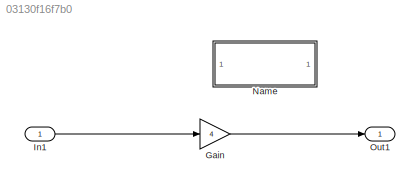
MODEL slx_03130f16f7b0
KIND model
CONFIG AbsTol = auto
CONFIG EnableMultiTasking = off
CONFIG FixedStep = auto
CONFIG MaxStep = auto
CONFIG MinStep = auto
CONFIG RelTol = 1e-3
CONFIG SampleTimeConstraint = Unconstrained
CONFIG SolverName = VariableStepAuto
CONFIG StartTime = 0.0
CONFIG StopTime = 10.0
BLOCK [Gain] Gain
  Gain = 4
BLOCK [Inport] In1
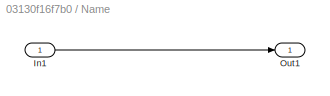
BLOCK [SubSystem] Name
BLOCK [Inport] Name/In1
BLOCK [Outport] Name/Out1
BLOCK [Outport] Out1
LINE Gain:1 -> Out1:1
LINE In1:1 -> Gain:1
LINE Name/In1:1 -> Name/Out1:1
